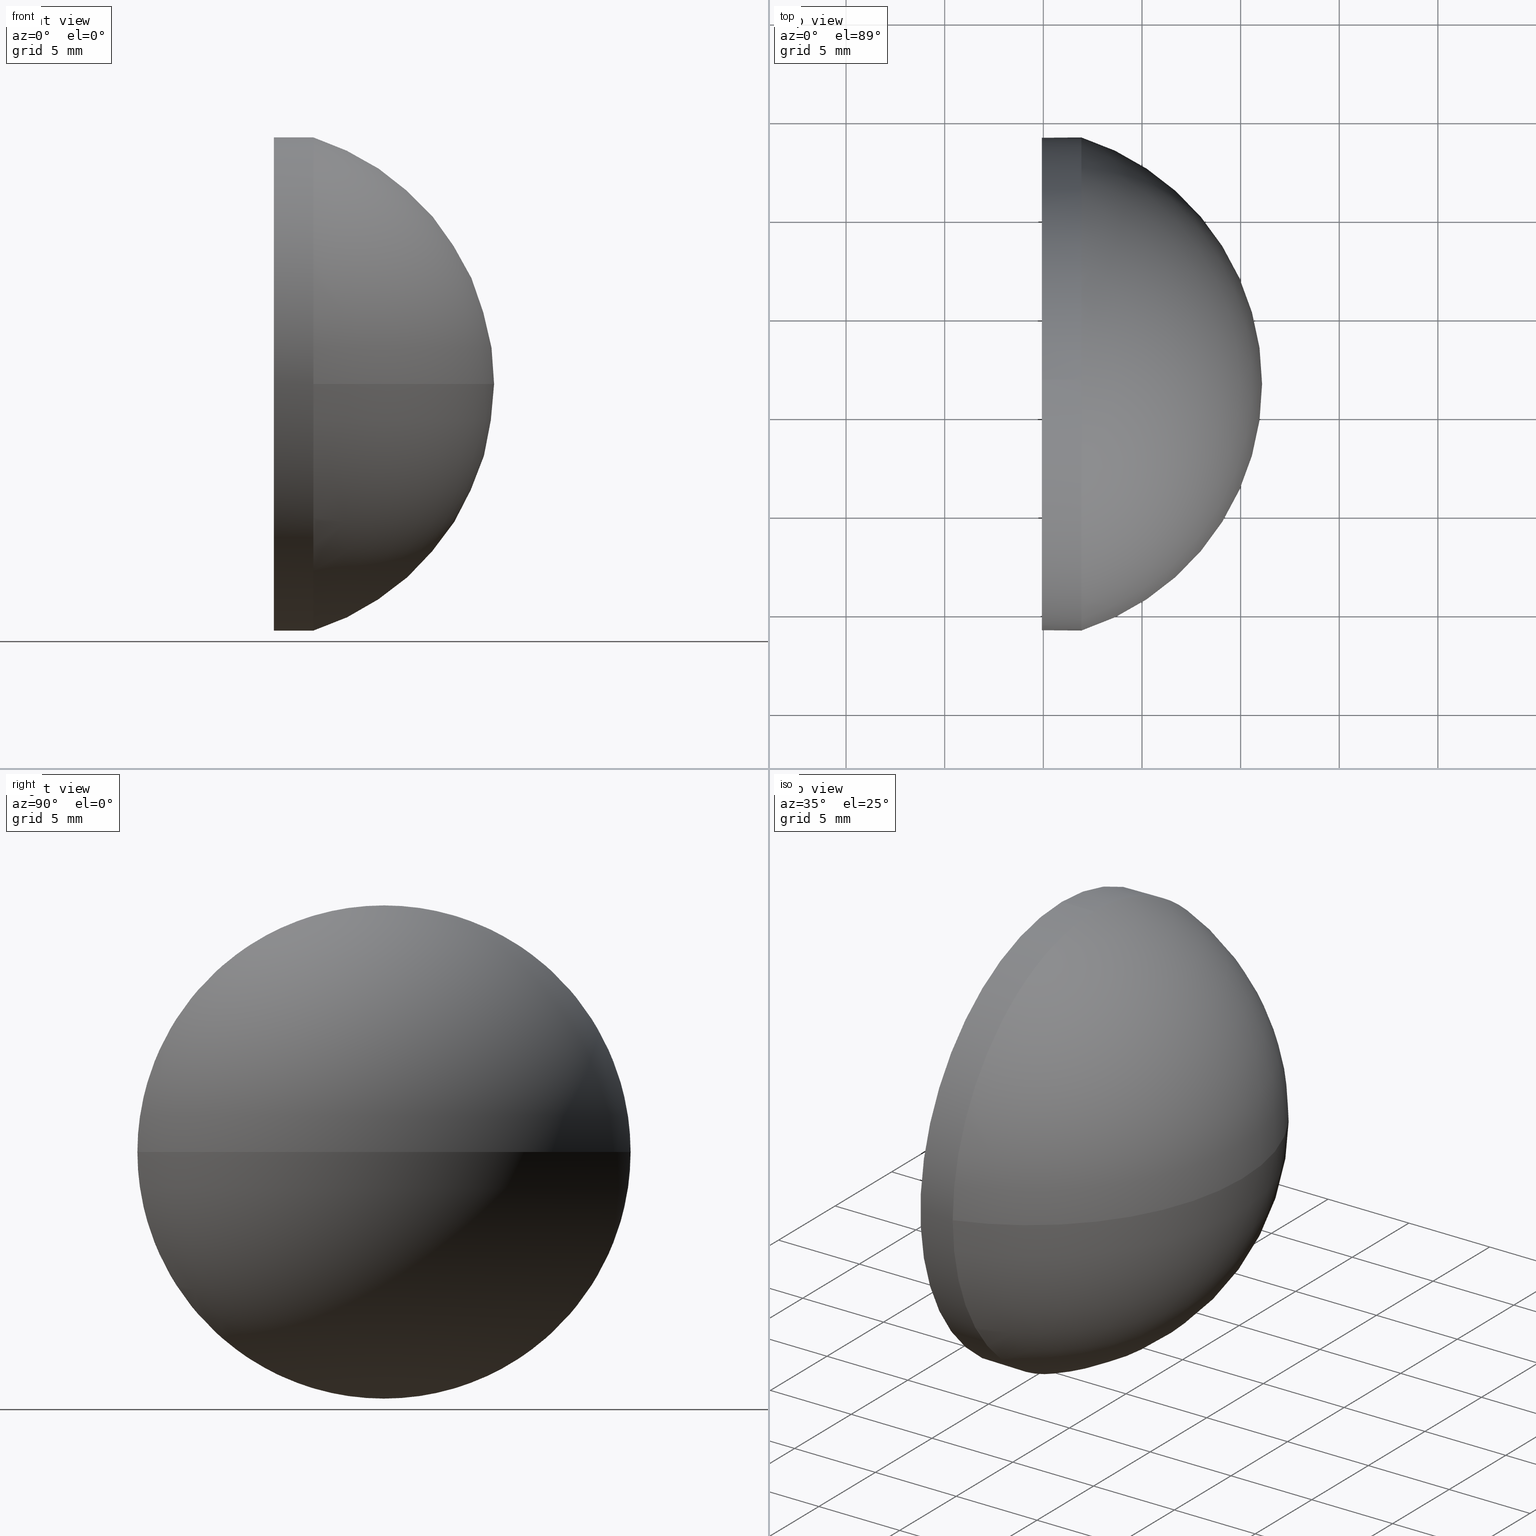
[diagram: canonical four-view strip — front | top / right | iso, engineering-drawing reading convention]
A machine part, canonical four-view strip (front | top / right | iso — engineering-drawing reading convention). The complete STEP part file that produces these views, byte-faithful:
ISO-10303-21;
HEADER;
FILE_DESCRIPTION (( 'STEP AP214' ),
    '1' );
FILE_NAME ('100122.STEP',
    '2019-05-14T06:24:21',
    ( '' ),
    ( '' ),
    'SwSTEP 2.0',
    'SolidWorks 2016',
    '' );
FILE_SCHEMA (( 'AUTOMOTIVE_DESIGN' ));
ENDSEC;

DATA;
#1 = AXIS2_PLACEMENT_3D ( 'NONE', #134, #156, #95 ) ;
#2 = AXIS2_PLACEMENT_3D ( 'NONE', #150, #118, #42 ) ;
#3 = DIRECTION ( 'NONE',  ( -1.000000000000000000, -0.0000000000000000000, -0.0000000000000000000 ) ) ;
#4 = AXIS2_PLACEMENT_3D ( 'NONE', #70, #111, #15 ) ;
#5 = CARTESIAN_POINT ( 'NONE',  ( 419.9278866193999400, 66.57798510397458400, 0.0000000000000000000 ) ) ;
#6 = CARTESIAN_POINT ( 'NONE',  ( 417.4229375998270900, 66.57798510397458400, 12.49999999999999600 ) ) ;
#7 = ORIENTED_EDGE ( 'NONE', *, *, #9, .F. ) ;
#8 = SHAPE_DEFINITION_REPRESENTATION ( #104, #29 ) ;
#9 = EDGE_CURVE ( 'NONE', #125, #132, #38, .T. ) ;
#10 =( NAMED_UNIT ( * ) PLANE_ANGLE_UNIT ( ) SI_UNIT ( $, .RADIAN. ) );
#11 = SURFACE_SIDE_STYLE ('',( #174 ) ) ;
#12 =( GEOMETRIC_REPRESENTATION_CONTEXT ( 3 ) GLOBAL_UNCERTAINTY_ASSIGNED_CONTEXT ( ( #99 ) ) GLOBAL_UNIT_ASSIGNED_CONTEXT ( ( #126, #37, #59 ) ) REPRESENTATION_CONTEXT ( 'NONE', 'WORKASPACE' ) );
#13 = DIRECTION ( 'NONE',  ( -1.000000000000000000, -0.0000000000000000000, -0.0000000000000000000 ) ) ;
#14 = VECTOR ( 'NONE', #75, 1000.000000000000000 ) ;
#15 = DIRECTION ( 'NONE',  ( 0.0000000000000000000, -1.000000000000000000, 0.0000000000000000000 ) ) ;
#16 = SPHERICAL_SURFACE ( 'NONE', #117, 13.10893013100434100 ) ;
#17 = AXIS2_PLACEMENT_3D ( 'NONE', #145, #19, #160 ) ;
#18 = ORIENTED_EDGE ( 'NONE', *, *, #9, .T. ) ;
#19 = DIRECTION ( 'NONE',  ( -1.000000000000000000, -0.0000000000000000000, -0.0000000000000000000 ) ) ;
#20 = FILL_AREA_STYLE_COLOUR ( '', #122 ) ;
#21 = APPLICATION_CONTEXT ( 'automotive_design' ) ;
#22 = SURFACE_STYLE_USAGE ( .BOTH. , #11 ) ;
#23 = FACE_OUTER_BOUND ( 'NONE', #33, .T. ) ;
#24 = CARTESIAN_POINT ( 'NONE',  ( 419.9278866193999400, 66.57798510397458400, -12.49999999999999600 ) ) ;
#25 = DIRECTION ( 'NONE',  ( 0.0000000000000000000, -1.000000000000000000, -1.224646799147353700E-016 ) ) ;
#26 = APPLICATION_PROTOCOL_DEFINITION ( 'draft international standard', 'automotive_design', 1998, #116 ) ;
#27 = VERTEX_POINT ( 'NONE', #176 ) ;
#28 = AXIS2_PLACEMENT_3D ( 'NONE', #149, #54, #167 ) ;
#29 = ADVANCED_BREP_SHAPE_REPRESENTATION ( '100122', ( #68, #2 ), #93 ) ;
#30 = CIRCLE ( 'NONE', #28, 12.49999999999999600 ) ;
#31 = ORIENTED_EDGE ( 'NONE', *, *, #87, .F. ) ;
#32 = AXIS2_PLACEMENT_3D ( 'NONE', #127, #39, #83 ) ;
#33 = EDGE_LOOP ( 'NONE', ( #7, #133, #105, #128, #139 ) ) ;
#34 = EDGE_CURVE ( 'NONE', #137, #169, #51, .T. ) ;
#35 = DIRECTION ( 'NONE',  ( -1.000000000000000000, 0.0000000000000000000, 0.0000000000000000000 ) ) ;
#36 = FILL_AREA_STYLE_COLOUR ( '', #151 ) ;
#37 =( NAMED_UNIT ( * ) PLANE_ANGLE_UNIT ( ) SI_UNIT ( $, .RADIAN. ) );
#38 = LINE ( 'NONE', #143, #14 ) ;
#39 = DIRECTION ( 'NONE',  ( -1.000000000000000000, -0.0000000000000000000, -0.0000000000000000000 ) ) ;
#40 = PRESENTATION_STYLE_ASSIGNMENT (( #22 ) ) ;
#41 = UNCERTAINTY_MEASURE_WITH_UNIT (LENGTH_MEASURE( 1.000000000000000100E-005 ), #179, 'distance_accuracy_value', 'NONE');
#42 = DIRECTION ( 'NONE',  ( 1.000000000000000000, 0.0000000000000000000, 0.0000000000000000000 ) ) ;
#43 = STYLED_ITEM ( 'NONE', ( #40 ), #29 ) ;
#44 = SPHERICAL_SURFACE ( 'NONE', #4, 13.10893013100434100 ) ;
#45 = ORIENTED_EDGE ( 'NONE', *, *, #154, .T. ) ;
#46 = DIRECTION ( 'NONE',  ( -1.000000000000000000, -0.0000000000000000000, -0.0000000000000000000 ) ) ;
#47 = CARTESIAN_POINT ( 'NONE',  ( 431.0878866193999700, 66.57798510397459800, 0.0000000000000000000 ) ) ;
#48 = ADVANCED_FACE ( 'NONE', ( #155 ), #94, .F. ) ;
#49 = EDGE_CURVE ( 'NONE', #115, #132, #56, .T. ) ;
#50 = DIRECTION ( 'NONE',  ( 0.0000000000000000000, 0.0000000000000000000, -1.000000000000000000 ) ) ;
#51 = CIRCLE ( 'NONE', #58, 12.49999999999999600 ) ;
#52 = PRESENTATION_LAYER_ASSIGNMENT (  '', '', ( #43 ) ) ;
#53 = FILL_AREA_STYLE ('',( #36 ) ) ;
#54 = DIRECTION ( 'NONE',  ( -1.000000000000000000, -0.0000000000000000000, -0.0000000000000000000 ) ) ;
#55 = CYLINDRICAL_SURFACE ( 'NONE', #1, 12.49999999999999600 ) ;
#56 = CIRCLE ( 'NONE', #62, 12.49999999999999600 ) ;
#57 = PRODUCT_CONTEXT ( 'NONE', #21, 'mechanical' ) ;
#58 = AXIS2_PLACEMENT_3D ( 'NONE', #77, #3, #106 ) ;
#59 =( NAMED_UNIT ( * ) SI_UNIT ( $, .STERADIAN. ) SOLID_ANGLE_UNIT ( ) );
#60 = CIRCLE ( 'NONE', #79, 13.10893013100433700 ) ;
#61 = ORIENTED_EDGE ( 'NONE', *, *, #34, .F. ) ;
#62 = AXIS2_PLACEMENT_3D ( 'NONE', #5, #46, #144 ) ;
#63 = ORIENTED_EDGE ( 'NONE', *, *, #157, .T. ) ;
#64 = CIRCLE ( 'NONE', #173, 12.49999999999999600 ) ;
#65 =( NAMED_UNIT ( * ) PLANE_ANGLE_UNIT ( ) SI_UNIT ( $, .RADIAN. ) );
#66 = CLOSED_SHELL ( 'NONE', ( #163, #159, #121, #108, #48 ) ) ;
#67 = MECHANICAL_DESIGN_GEOMETRIC_PRESENTATION_REPRESENTATION (  '', ( #71 ), #180 ) ;
#68 = MANIFOLD_SOLID_BREP ( '��ת1', #66 ) ;
#69 = PRODUCT_DEFINITION ( 'δ֪', '', #152, #147 ) ;
#70 = CARTESIAN_POINT ( 'NONE',  ( 417.9789564883956200, 66.57798510397459800, 0.0000000000000000000 ) ) ;
#71 = STYLED_ITEM ( 'NONE', ( #153 ), #68 ) ;
#72 = ORIENTED_EDGE ( 'NONE', *, *, #49, .T. ) ;
#73 = MECHANICAL_DESIGN_GEOMETRIC_PRESENTATION_REPRESENTATION (  '', ( #43 ), #12 ) ;
#74 = PRODUCT ( '100122', '100122', '', ( #57 ) ) ;
#75 = DIRECTION ( 'NONE',  ( -1.000000000000000000, -0.0000000000000000000, -0.0000000000000000000 ) ) ;
#76 =( NAMED_UNIT ( * ) SI_UNIT ( $, .STERADIAN. ) SOLID_ANGLE_UNIT ( ) );
#77 = CARTESIAN_POINT ( 'NONE',  ( 421.9278866193999400, 66.57798510397458400, 0.0000000000000000000 ) ) ;
#78 = ORIENTED_EDGE ( 'NONE', *, *, #87, .T. ) ;
#79 = AXIS2_PLACEMENT_3D ( 'NONE', #124, #50, #35 ) ;
#80 = DIRECTION ( 'NONE',  ( 0.0000000000000000000, -1.000000000000000000, 0.0000000000000000000 ) ) ;
#81 = CARTESIAN_POINT ( 'NONE',  ( 421.9278866193999400, 66.57798510397458400, -12.49999999999999600 ) ) ;
#82 = APPLICATION_PROTOCOL_DEFINITION ( 'draft international standard', 'automotive_design', 1998, #21 ) ;
#83 = DIRECTION ( 'NONE',  ( 0.0000000000000000000, 0.0000000000000000000, 1.000000000000000000 ) ) ;
#84 = DIRECTION ( 'NONE',  ( 0.0000000000000000000, -1.224646799147353200E-016, 1.000000000000000000 ) ) ;
#85 = EDGE_LOOP ( 'NONE', ( #148, #110, #89, #31 ) ) ;
#86 = CARTESIAN_POINT ( 'NONE',  ( 417.9789564883956200, 66.57798510397459800, 0.0000000000000000000 ) ) ;
#87 = EDGE_CURVE ( 'NONE', #27, #125, #100, .T. ) ;
#88 = FACE_OUTER_BOUND ( 'NONE', #165, .T. ) ;
#89 = ORIENTED_EDGE ( 'NONE', *, *, #136, .F. ) ;
#90 = FILL_AREA_STYLE ('',( #20 ) ) ;
#91 = SURFACE_STYLE_FILL_AREA ( #90 ) ;
#92 = SURFACE_SIDE_STYLE ('',( #91 ) ) ;
#93 =( GEOMETRIC_REPRESENTATION_CONTEXT ( 3 ) GLOBAL_UNCERTAINTY_ASSIGNED_CONTEXT ( ( #97 ) ) GLOBAL_UNIT_ASSIGNED_CONTEXT ( ( #98, #10, #102 ) ) REPRESENTATION_CONTEXT ( 'NONE', 'WORKASPACE' ) );
#94 = PLANE ( 'NONE',  #164 ) ;
#95 = DIRECTION ( 'NONE',  ( 0.0000000000000000000, 0.0000000000000000000, 1.000000000000000000 ) ) ;
#96 = ORIENTED_EDGE ( 'NONE', *, *, #146, .T. ) ;
#97 = UNCERTAINTY_MEASURE_WITH_UNIT (LENGTH_MEASURE( 1.000000000000000100E-005 ), #98, 'distance_accuracy_value', 'NONE');
#98 =( LENGTH_UNIT ( ) NAMED_UNIT ( * ) SI_UNIT ( .MILLI., .METRE. ) );
#99 = UNCERTAINTY_MEASURE_WITH_UNIT (LENGTH_MEASURE( 1.000000000000000100E-005 ), #126, 'distance_accuracy_value', 'NONE');
#100 = CIRCLE ( 'NONE', #17, 12.49999999999999600 ) ;
#101 = PRODUCT_RELATED_PRODUCT_CATEGORY ( 'part', '', ( #74 ) ) ;
#102 =( NAMED_UNIT ( * ) SI_UNIT ( $, .STERADIAN. ) SOLID_ANGLE_UNIT ( ) );
#103 = EDGE_LOOP ( 'NONE', ( #72, #96 ) ) ;
#104 = PRODUCT_DEFINITION_SHAPE ( 'NONE', 'NONE',  #69 ) ;
#105 = ORIENTED_EDGE ( 'NONE', *, *, #34, .T. ) ;
#106 = DIRECTION ( 'NONE',  ( 0.0000000000000000000, 0.0000000000000000000, 1.000000000000000000 ) ) ;
#107 = DIRECTION ( 'NONE',  ( 0.0000000000000000000, 0.0000000000000000000, -1.000000000000000000 ) ) ;
#108 = ADVANCED_FACE ( 'NONE', ( #23 ), #55, .T. ) ;
#109 = EDGE_CURVE ( 'NONE', #119, #137, #60, .T. ) ;
#110 = ORIENTED_EDGE ( 'NONE', *, *, #109, .T. ) ;
#111 = DIRECTION ( 'NONE',  ( 0.0000000000000000000, 0.0000000000000000000, 1.000000000000000000 ) ) ;
#112 = CARTESIAN_POINT ( 'NONE',  ( 421.9278866193999400, 66.57798510397458400, 0.0000000000000000000 ) ) ;
#113 = CARTESIAN_POINT ( 'NONE',  ( 421.9278866193999400, 66.57798510397458400, 12.49999999999999600 ) ) ;
#114 = DIRECTION ( 'NONE',  ( 0.0000000000000000000, 0.0000000000000000000, 1.000000000000000000 ) ) ;
#115 = VERTEX_POINT ( 'NONE', #178 ) ;
#116 = APPLICATION_CONTEXT ( 'automotive_design' ) ;
#117 = AXIS2_PLACEMENT_3D ( 'NONE', #135, #166, #80 ) ;
#118 = DIRECTION ( 'NONE',  ( 0.0000000000000000000, 0.0000000000000000000, 1.000000000000000000 ) ) ;
#119 = VERTEX_POINT ( 'NONE', #47 ) ;
#120 = DIRECTION ( 'NONE',  ( 1.000000000000000000, 0.0000000000000000000, 0.0000000000000000000 ) ) ;
#121 = ADVANCED_FACE ( 'NONE', ( #161 ), #16, .T. ) ;
#122 = COLOUR_RGB ( '',1.000000000000000000, 1.000000000000000000, 1.000000000000000000 ) ;
#123 = AXIS2_PLACEMENT_3D ( 'NONE', #86, #84, #25 ) ;
#124 = CARTESIAN_POINT ( 'NONE',  ( 417.9789564883956200, 66.57798510397459800, 0.0000000000000000000 ) ) ;
#125 = VERTEX_POINT ( 'NONE', #81 ) ;
#126 =( LENGTH_UNIT ( ) NAMED_UNIT ( * ) SI_UNIT ( .MILLI., .METRE. ) );
#127 = CARTESIAN_POINT ( 'NONE',  ( 417.4229375998270900, 66.57798510397458400, 0.0000000000000000000 ) ) ;
#128 = ORIENTED_EDGE ( 'NONE', *, *, #129, .T. ) ;
#129 = EDGE_CURVE ( 'NONE', #169, #115, #131, .T. ) ;
#130 = ORIENTED_EDGE ( 'NONE', *, *, #109, .F. ) ;
#131 = LINE ( 'NONE', #6, #184 ) ;
#132 = VERTEX_POINT ( 'NONE', #24 ) ;
#133 = ORIENTED_EDGE ( 'NONE', *, *, #136, .T. ) ;
#134 = CARTESIAN_POINT ( 'NONE',  ( 417.4229375998270900, 66.57798510397458400, 0.0000000000000000000 ) ) ;
#135 = CARTESIAN_POINT ( 'NONE',  ( 417.9789564883956200, 66.57798510397459800, 0.0000000000000000000 ) ) ;
#136 = EDGE_CURVE ( 'NONE', #125, #137, #168, .T. ) ;
#137 = VERTEX_POINT ( 'NONE', #185 ) ;
#138 = DIRECTION ( 'NONE',  ( 0.0000000000000000000, 0.0000000000000000000, 1.000000000000000000 ) ) ;
#139 = ORIENTED_EDGE ( 'NONE', *, *, #146, .F. ) ;
#140 = CYLINDRICAL_SURFACE ( 'NONE', #32, 12.49999999999999600 ) ;
#141 = ORIENTED_EDGE ( 'NONE', *, *, #157, .F. ) ;
#142 = AXIS2_PLACEMENT_3D ( 'NONE', #182, #183, #114 ) ;
#143 = CARTESIAN_POINT ( 'NONE',  ( 417.4229375998270900, 66.57798510397458400, -12.49999999999999600 ) ) ;
#144 = DIRECTION ( 'NONE',  ( 0.0000000000000000000, 0.0000000000000000000, 1.000000000000000000 ) ) ;
#145 = CARTESIAN_POINT ( 'NONE',  ( 421.9278866193999400, 66.57798510397458400, 0.0000000000000000000 ) ) ;
#146 = EDGE_CURVE ( 'NONE', #132, #115, #30, .T. ) ;
#147 = PRODUCT_DEFINITION_CONTEXT ( 'detailed design', #116, 'design' ) ;
#148 = ORIENTED_EDGE ( 'NONE', *, *, #154, .F. ) ;
#149 = CARTESIAN_POINT ( 'NONE',  ( 419.9278866193999400, 66.57798510397458400, 0.0000000000000000000 ) ) ;
#150 = CARTESIAN_POINT ( 'NONE',  ( 0.0000000000000000000, 0.0000000000000000000, 0.0000000000000000000 ) ) ;
#151 = COLOUR_RGB ( '',1.000000000000000000, 1.000000000000000000, 1.000000000000000000 ) ;
#152 = PRODUCT_DEFINITION_FORMATION_WITH_SPECIFIED_SOURCE ( '�κ�', '', #74, .NOT_KNOWN. ) ;
#153 = PRESENTATION_STYLE_ASSIGNMENT (( #158 ) ) ;
#154 = EDGE_CURVE ( 'NONE', #119, #27, #175, .T. ) ;
#155 = FACE_OUTER_BOUND ( 'NONE', #103, .T. ) ;
#156 = DIRECTION ( 'NONE',  ( -1.000000000000000000, -0.0000000000000000000, -0.0000000000000000000 ) ) ;
#157 = EDGE_CURVE ( 'NONE', #169, #27, #64, .T. ) ;
#158 = SURFACE_STYLE_USAGE ( .BOTH. , #92 ) ;
#159 = ADVANCED_FACE ( 'NONE', ( #170 ), #44, .T. ) ;
#160 = DIRECTION ( 'NONE',  ( 0.0000000000000000000, 0.0000000000000000000, 1.000000000000000000 ) ) ;
#161 = FACE_OUTER_BOUND ( 'NONE', #85, .T. ) ;
#162 = EDGE_LOOP ( 'NONE', ( #130, #45, #141, #61 ) ) ;
#163 = ADVANCED_FACE ( 'NONE', ( #88 ), #140, .T. ) ;
#164 = AXIS2_PLACEMENT_3D ( 'NONE', #177, #120, #107 ) ;
#165 = EDGE_LOOP ( 'NONE', ( #78, #18, #186, #181, #63 ) ) ;
#166 = DIRECTION ( 'NONE',  ( 0.0000000000000000000, 0.0000000000000000000, 1.000000000000000000 ) ) ;
#167 = DIRECTION ( 'NONE',  ( 0.0000000000000000000, 0.0000000000000000000, 1.000000000000000000 ) ) ;
#168 = CIRCLE ( 'NONE', #142, 12.49999999999999600 ) ;
#169 = VERTEX_POINT ( 'NONE', #113 ) ;
#170 = FACE_OUTER_BOUND ( 'NONE', #162, .T. ) ;
#171 = PRESENTATION_LAYER_ASSIGNMENT (  '', '', ( #71 ) ) ;
#172 = DIRECTION ( 'NONE',  ( -1.000000000000000000, -0.0000000000000000000, -0.0000000000000000000 ) ) ;
#173 = AXIS2_PLACEMENT_3D ( 'NONE', #112, #172, #138 ) ;
#174 = SURFACE_STYLE_FILL_AREA ( #53 ) ;
#175 = CIRCLE ( 'NONE', #123, 13.10893013100433700 ) ;
#176 = CARTESIAN_POINT ( 'NONE',  ( 421.9278866193999400, 79.07798510397458400, 1.530808498934189500E-015 ) ) ;
#177 = CARTESIAN_POINT ( 'NONE',  ( 419.9278866193999400, 66.57798510397458400, 0.0000000000000000000 ) ) ;
#178 = CARTESIAN_POINT ( 'NONE',  ( 419.9278866193999400, 66.57798510397458400, 12.49999999999999600 ) ) ;
#179 =( LENGTH_UNIT ( ) NAMED_UNIT ( * ) SI_UNIT ( .MILLI., .METRE. ) );
#180 =( GEOMETRIC_REPRESENTATION_CONTEXT ( 3 ) GLOBAL_UNCERTAINTY_ASSIGNED_CONTEXT ( ( #41 ) ) GLOBAL_UNIT_ASSIGNED_CONTEXT ( ( #179, #65, #76 ) ) REPRESENTATION_CONTEXT ( 'NONE', 'WORKASPACE' ) );
#181 = ORIENTED_EDGE ( 'NONE', *, *, #129, .F. ) ;
#182 = CARTESIAN_POINT ( 'NONE',  ( 421.9278866193999400, 66.57798510397458400, 0.0000000000000000000 ) ) ;
#183 = DIRECTION ( 'NONE',  ( -1.000000000000000000, -0.0000000000000000000, -0.0000000000000000000 ) ) ;
#184 = VECTOR ( 'NONE', #13, 1000.000000000000000 ) ;
#185 = CARTESIAN_POINT ( 'NONE',  ( 421.9278866193999400, 54.07798510397460500, 0.0000000000000000000 ) ) ;
#186 = ORIENTED_EDGE ( 'NONE', *, *, #49, .F. ) ;
ENDSEC;
END-ISO-10303-21;
